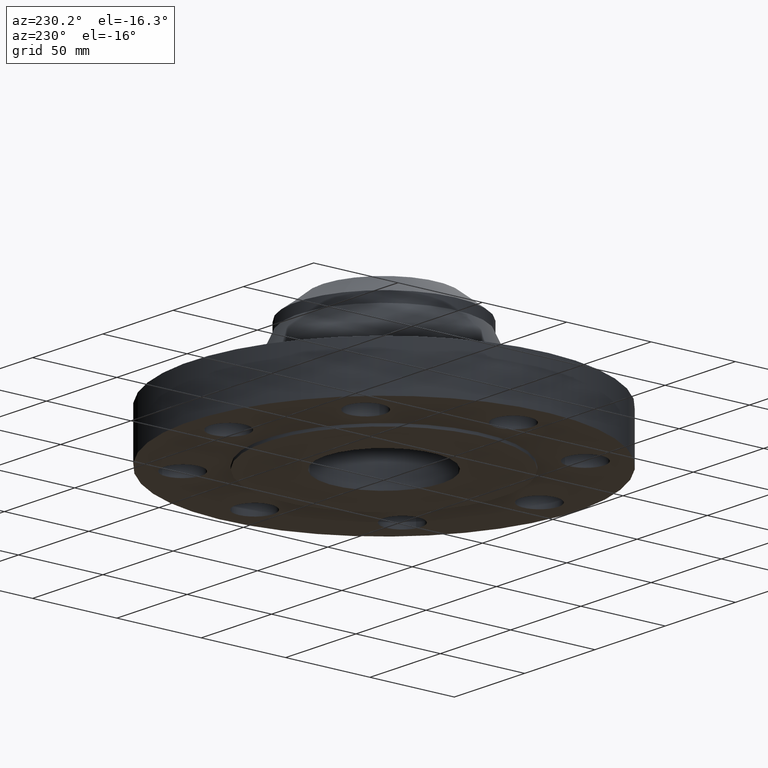
[diagram: clean part render]
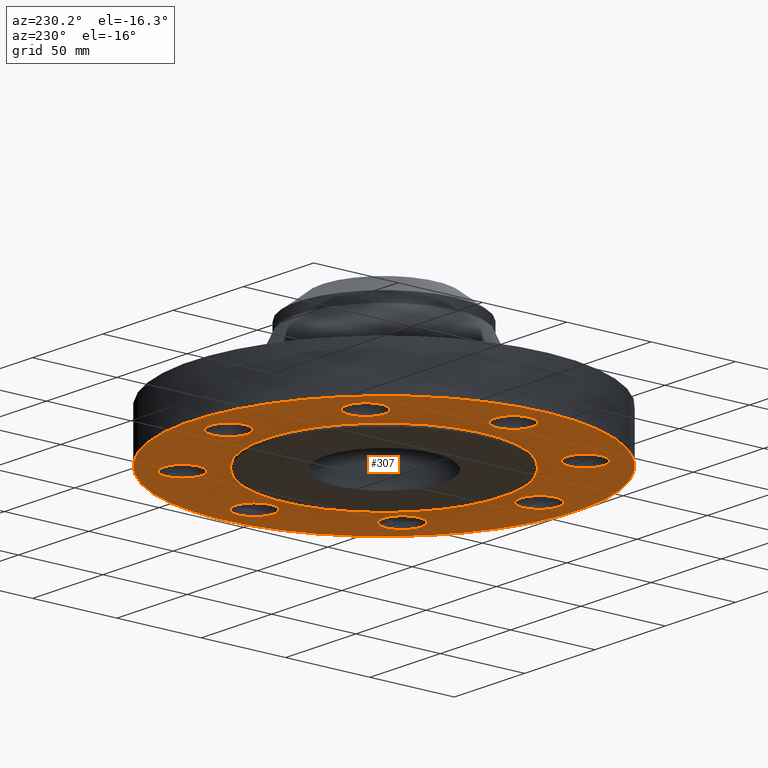
[diagram: same view with one face highlighted and labeled with its STEP entity id]
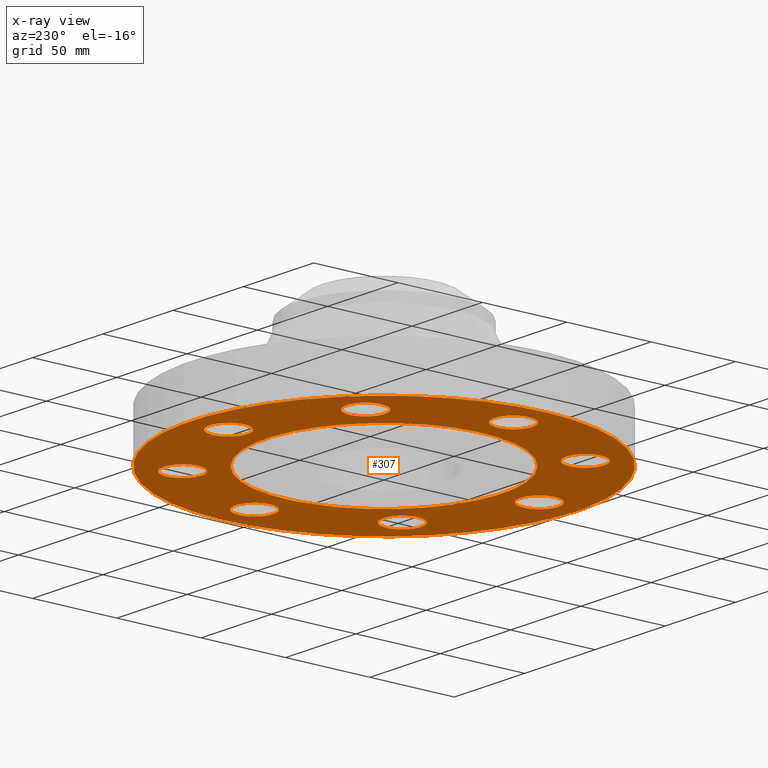
[diagram: x-ray of the same camera — body ghosted, the highlighted face saturated]
A machine part, auxiliary view. The second image highlights one B-rep face of the part: STEP entity #307.
The next image is the same camera in x-ray: the body ghosted, the highlighted face saturated — about 0% of this face is hidden behind the body in this view.
In plain terms, the highlighted planar face has unit normal (0, 0, -1).
Its self-contained STEP definition (entity closure, byte-faithful):
#51=AXIS2_PLACEMENT_3D('Circle Axis2P3D',#49,#50,$) ;
#139=AXIS2_PLACEMENT_3D('Plane Axis2P3D',#136,#137,#138) ;
#143=AXIS2_PLACEMENT_3D('Circle Axis2P3D',#141,#142,$) ;
#152=AXIS2_PLACEMENT_3D('Circle Axis2P3D',#150,#151,$) ;
#165=AXIS2_PLACEMENT_3D('Circle Axis2P3D',#163,#164,$) ;
#174=AXIS2_PLACEMENT_3D('Circle Axis2P3D',#172,#173,$) ;
#183=AXIS2_PLACEMENT_3D('Circle Axis2P3D',#181,#182,$) ;
#192=AXIS2_PLACEMENT_3D('Circle Axis2P3D',#190,#191,$) ;
#201=AXIS2_PLACEMENT_3D('Circle Axis2P3D',#199,#200,$) ;
#210=AXIS2_PLACEMENT_3D('Circle Axis2P3D',#208,#209,$) ;
#219=AXIS2_PLACEMENT_3D('Circle Axis2P3D',#217,#218,$) ;
#228=AXIS2_PLACEMENT_3D('Circle Axis2P3D',#226,#227,$) ;
#237=AXIS2_PLACEMENT_3D('Circle Axis2P3D',#235,#236,$) ;
#246=AXIS2_PLACEMENT_3D('Circle Axis2P3D',#244,#245,$) ;
#255=AXIS2_PLACEMENT_3D('Circle Axis2P3D',#253,#254,$) ;
#264=AXIS2_PLACEMENT_3D('Circle Axis2P3D',#262,#263,$) ;
#273=AXIS2_PLACEMENT_3D('Circle Axis2P3D',#271,#272,$) ;
#282=AXIS2_PLACEMENT_3D('Circle Axis2P3D',#280,#281,$) ;
#291=AXIS2_PLACEMENT_3D('Circle Axis2P3D',#289,#290,$) ;
#300=AXIS2_PLACEMENT_3D('Circle Axis2P3D',#298,#299,$) ;
#44=CARTESIAN_POINT('Vertex',(3.23886367278,0.210947236988,3.15885200761E-011)) ;
#49=CARTESIAN_POINT('Axis2P3D Location',(3.62500000001,0.,3.15885200761E-011)) ;
#53=CARTESIAN_POINT('Vertex',(4.01113632724,-0.210947236987,3.15885200761E-011)) ;
#89=CARTESIAN_POINT('Control Point',(4.01113632724,-0.210947236987,3.15885200761E-011)) ;
#90=CARTESIAN_POINT('Control Point',(3.97800081274,-0.271601389433,3.00090940723E-011)) ;
#91=CARTESIAN_POINT('Control Point',(3.93295588326,-0.325749398821,2.84296680685E-011)) ;
#92=CARTESIAN_POINT('Control Point',(3.8776953225,-0.370262840224,2.68502770324E-011)) ;
#93=CARTESIAN_POINT('Control Point',(3.75269808393,-0.435223603166,2.36914250248E-011)) ;
#94=CARTESIAN_POINT('Control Point',(3.61241808449,-0.448097302225,2.05325730171E-011)) ;
#95=CARTESIAN_POINT('Control Point',(3.54186721097,-0.440497941251,1.8953181981E-011)) ;
#96=CARTESIAN_POINT('Control Point',(3.40754661997,-0.398045742217,1.57943299734E-011)) ;
#97=CARTESIAN_POINT('Control Point',(3.29925060119,-0.307955883249,1.26354779658E-011)) ;
#98=CARTESIAN_POINT('Control Point',(3.25473715979,-0.252695322491,1.10560869296E-011)) ;
#99=CARTESIAN_POINT('Control Point',(3.18977639684,-0.127698083922,7.897234922E-012)) ;
#100=CARTESIAN_POINT('Control Point',(3.17690269778,0.0125819155223,4.73838291438E-012)) ;
#101=CARTESIAN_POINT('Control Point',(3.18450205876,0.0831327890369,3.15899187823E-012)) ;
#102=CARTESIAN_POINT('Control Point',(3.20572815828,0.150293084541,1.57956587442E-012)) ;
#103=CARTESIAN_POINT('Control Point',(3.23886367278,0.210947236987,1.39870617276E-016)) ;
#136=CARTESIAN_POINT('Axis2P3D Location',(0.,2.75000000001,0.)) ;
#141=CARTESIAN_POINT('Axis2P3D Location',(3.08532202411E-011,7.81149423361E-012,0.)) ;
#145=CARTESIAN_POINT('Vertex',(-2.15741492373,-3.94912152852,-2.57865470009E-011)) ;
#147=CARTESIAN_POINT('Vertex',(2.15741492373,3.94912152852,-2.57865470009E-011)) ;
#150=CARTESIAN_POINT('Axis2P3D Location',(1.1189649382E-015,2.46675820627E-011,0.)) ;
#163=CARTESIAN_POINT('Axis2P3D Location',(4.36664877485E-011,-3.58533150675E-011,0.)) ;
#167=CARTESIAN_POINT('Vertex',(1.31842023117,2.41335204521,-2.57865470009E-011)) ;
#169=CARTESIAN_POINT('Vertex',(-1.31842023117,-2.41335204521,-2.57865470009E-011)) ;
#172=CARTESIAN_POINT('Axis2P3D Location',(-4.36664877485E-011,1.18548740378E-011,0.)) ;
#181=CARTESIAN_POINT('Axis2P3D Location',(2.56326208176,-2.56326208183,0.)) ;
#185=CARTESIAN_POINT('Vertex',(2.43938468807,-2.1410602446,0.)) ;
#187=CARTESIAN_POINT('Vertex',(2.68713947554,-2.98546391903,0.)) ;
#190=CARTESIAN_POINT('Axis2P3D Location',(2.56326208185,-2.56326208181,0.)) ;
#199=CARTESIAN_POINT('Axis2P3D Location',(-3.49676543189E-017,-3.62500000002,0.)) ;
#203=CARTESIAN_POINT('Vertex',(0.210947237,-3.23886367277,0.)) ;
#205=CARTESIAN_POINT('Vertex',(-0.210947237,-4.01113632727,0.)) ;
#208=CARTESIAN_POINT('Axis2P3D Location',(3.49676543189E-017,-3.62500000002,0.)) ;
#217=CARTESIAN_POINT('Axis2P3D Location',(-2.56326208179,-2.56326208186,0.)) ;
#221=CARTESIAN_POINT('Vertex',(-2.14106024463,-2.43938468812,0.)) ;
#223=CARTESIAN_POINT('Vertex',(-2.98546391899,-2.68713947552,0.)) ;
#226=CARTESIAN_POINT('Axis2P3D Location',(-2.56326208182,-2.56326208178,0.)) ;
#235=CARTESIAN_POINT('Axis2P3D Location',(-3.62500000001,-1.19992205148E-011,0.)) ;
#239=CARTESIAN_POINT('Vertex',(-3.2388636728,-0.210947236975,0.)) ;
#241=CARTESIAN_POINT('Vertex',(-4.01113632722,0.210947236951,0.)) ;
#244=CARTESIAN_POINT('Axis2P3D Location',(-3.62500000001,-1.19992205148E-011,0.)) ;
#253=CARTESIAN_POINT('Axis2P3D Location',(-2.56326208176,2.56326208181,0.)) ;
#257=CARTESIAN_POINT('Vertex',(-2.43938468807,2.14106024458,0.)) ;
#259=CARTESIAN_POINT('Vertex',(-2.68713947554,2.98546391901,0.)) ;
#262=CARTESIAN_POINT('Axis2P3D Location',(-2.56326208185,2.56326208178,0.)) ;
#271=CARTESIAN_POINT('Axis2P3D Location',(3.49676543189E-017,3.625,0.)) ;
#275=CARTESIAN_POINT('Vertex',(-0.210947237,3.23886367275,0.)) ;
#277=CARTESIAN_POINT('Vertex',(0.210947237,4.01113632724,0.)) ;
#280=CARTESIAN_POINT('Axis2P3D Location',(-3.49676543189E-017,3.625,0.)) ;
#289=CARTESIAN_POINT('Axis2P3D Location',(2.56326208179,2.56326208184,0.)) ;
#293=CARTESIAN_POINT('Vertex',(2.14106024463,2.4393846881,0.)) ;
#295=CARTESIAN_POINT('Vertex',(2.98546391899,2.68713947549,0.)) ;
#298=CARTESIAN_POINT('Axis2P3D Location',(2.56326208182,2.56326208175,0.)) ;
#50=DIRECTION('Axis2P3D Direction',(0.,-0.,-0.0393700787402)) ;
#137=DIRECTION('Axis2P3D Direction',(0.,0.,-0.0393700787402)) ;
#138=DIRECTION('Axis2P3D XDirection',(0.0393700787402,0.,0.)) ;
#142=DIRECTION('Axis2P3D Direction',(0.,0.,-0.0393700787402)) ;
#151=DIRECTION('Axis2P3D Direction',(0.,0.,-0.0393700787402)) ;
#164=DIRECTION('Axis2P3D Direction',(0.,0.,-0.0393700787402)) ;
#173=DIRECTION('Axis2P3D Direction',(0.,0.,-0.0393700787402)) ;
#182=DIRECTION('Axis2P3D Direction',(0.,0.,-0.0393700787402)) ;
#191=DIRECTION('Axis2P3D Direction',(0.,0.,-0.0393700787402)) ;
#200=DIRECTION('Axis2P3D Direction',(0.,0.,-0.0393700787402)) ;
#209=DIRECTION('Axis2P3D Direction',(0.,0.,-0.0393700787402)) ;
#218=DIRECTION('Axis2P3D Direction',(0.,0.,-0.0393700787402)) ;
#227=DIRECTION('Axis2P3D Direction',(0.,0.,-0.0393700787402)) ;
#236=DIRECTION('Axis2P3D Direction',(0.,0.,-0.0393700787402)) ;
#245=DIRECTION('Axis2P3D Direction',(0.,0.,-0.0393700787402)) ;
#254=DIRECTION('Axis2P3D Direction',(0.,0.,-0.0393700787402)) ;
#263=DIRECTION('Axis2P3D Direction',(0.,0.,-0.0393700787402)) ;
#272=DIRECTION('Axis2P3D Direction',(0.,0.,-0.0393700787402)) ;
#281=DIRECTION('Axis2P3D Direction',(0.,0.,-0.0393700787402)) ;
#290=DIRECTION('Axis2P3D Direction',(0.,0.,-0.0393700787402)) ;
#299=DIRECTION('Axis2P3D Direction',(0.,0.,-0.0393700787402)) ;
#156=ORIENTED_EDGE('',*,*,#149,.T.) ;
#157=ORIENTED_EDGE('',*,*,#154,.T.) ;
#160=ORIENTED_EDGE('',*,*,#104,.F.) ;
#161=ORIENTED_EDGE('',*,*,#55,.F.) ;
#178=ORIENTED_EDGE('',*,*,#171,.F.) ;
#179=ORIENTED_EDGE('',*,*,#176,.F.) ;
#196=ORIENTED_EDGE('',*,*,#189,.F.) ;
#197=ORIENTED_EDGE('',*,*,#194,.F.) ;
#214=ORIENTED_EDGE('',*,*,#207,.F.) ;
#215=ORIENTED_EDGE('',*,*,#212,.F.) ;
#232=ORIENTED_EDGE('',*,*,#225,.F.) ;
#233=ORIENTED_EDGE('',*,*,#230,.F.) ;
#250=ORIENTED_EDGE('',*,*,#243,.F.) ;
#251=ORIENTED_EDGE('',*,*,#248,.F.) ;
#268=ORIENTED_EDGE('',*,*,#261,.F.) ;
#269=ORIENTED_EDGE('',*,*,#266,.F.) ;
#286=ORIENTED_EDGE('',*,*,#279,.F.) ;
#287=ORIENTED_EDGE('',*,*,#284,.F.) ;
#304=ORIENTED_EDGE('',*,*,#297,.F.) ;
#305=ORIENTED_EDGE('',*,*,#302,.F.) ;
#162=FACE_BOUND('',#159,.T.) ;
#180=FACE_BOUND('',#177,.T.) ;
#198=FACE_BOUND('',#195,.T.) ;
#216=FACE_BOUND('',#213,.T.) ;
#234=FACE_BOUND('',#231,.T.) ;
#252=FACE_BOUND('',#249,.T.) ;
#270=FACE_BOUND('',#267,.T.) ;
#288=FACE_BOUND('',#285,.T.) ;
#306=FACE_BOUND('',#303,.T.) ;
#307=ADVANCED_FACE('PartBody',(#158,#162,#180,#198,#216,#234,#252,#270,#288,#306),#140,.T.) ;
#88=B_SPLINE_CURVE_WITH_KNOTS('',5,(#89,#90,#91,#92,#93,#94,#95,#96,#97,#98,#99,#100,#101,#102,#103),.UNSPECIFIED.,.F.,.U.,(6,3,3,3,6),(-17.5552197483,-8.77760987417,0.,8.77760987417,17.5552197483),.UNSPECIFIED.) ;
#52=CIRCLE('generated circle',#51,0.440000000002) ;
#144=CIRCLE('generated circle',#143,4.50000000003) ;
#153=CIRCLE('generated circle',#152,4.50000000003) ;
#166=CIRCLE('generated circle',#165,2.74999999999) ;
#175=CIRCLE('generated circle',#174,2.74999999999) ;
#184=CIRCLE('generated circle',#183,0.44000000003) ;
#193=CIRCLE('generated circle',#192,0.44000000003) ;
#202=CIRCLE('generated circle',#201,0.44000000002) ;
#211=CIRCLE('generated circle',#210,0.44000000002) ;
#220=CIRCLE('generated circle',#219,0.439999999984) ;
#229=CIRCLE('generated circle',#228,0.439999999984) ;
#238=CIRCLE('generated circle',#237,0.43999999997) ;
#247=CIRCLE('generated circle',#246,0.43999999997) ;
#256=CIRCLE('generated circle',#255,0.44000000003) ;
#265=CIRCLE('generated circle',#264,0.44000000003) ;
#274=CIRCLE('generated circle',#273,0.44000000002) ;
#283=CIRCLE('generated circle',#282,0.44000000002) ;
#292=CIRCLE('generated circle',#291,0.439999999984) ;
#301=CIRCLE('generated circle',#300,0.439999999984) ;
#55=EDGE_CURVE('',#45,#54,#52,.T.) ;
#104=EDGE_CURVE('',#54,#45,#88,.T.) ;
#149=EDGE_CURVE('',#146,#148,#144,.T.) ;
#154=EDGE_CURVE('',#148,#146,#153,.T.) ;
#171=EDGE_CURVE('',#168,#170,#166,.T.) ;
#176=EDGE_CURVE('',#170,#168,#175,.T.) ;
#189=EDGE_CURVE('',#186,#188,#184,.T.) ;
#194=EDGE_CURVE('',#188,#186,#193,.T.) ;
#207=EDGE_CURVE('',#204,#206,#202,.T.) ;
#212=EDGE_CURVE('',#206,#204,#211,.T.) ;
#225=EDGE_CURVE('',#222,#224,#220,.T.) ;
#230=EDGE_CURVE('',#224,#222,#229,.T.) ;
#243=EDGE_CURVE('',#240,#242,#238,.T.) ;
#248=EDGE_CURVE('',#242,#240,#247,.T.) ;
#261=EDGE_CURVE('',#258,#260,#256,.T.) ;
#266=EDGE_CURVE('',#260,#258,#265,.T.) ;
#279=EDGE_CURVE('',#276,#278,#274,.T.) ;
#284=EDGE_CURVE('',#278,#276,#283,.T.) ;
#297=EDGE_CURVE('',#294,#296,#292,.T.) ;
#302=EDGE_CURVE('',#296,#294,#301,.T.) ;
#155=EDGE_LOOP('',(#156,#157)) ;
#159=EDGE_LOOP('',(#160,#161)) ;
#177=EDGE_LOOP('',(#178,#179)) ;
#195=EDGE_LOOP('',(#196,#197)) ;
#213=EDGE_LOOP('',(#214,#215)) ;
#231=EDGE_LOOP('',(#232,#233)) ;
#249=EDGE_LOOP('',(#250,#251)) ;
#267=EDGE_LOOP('',(#268,#269)) ;
#285=EDGE_LOOP('',(#286,#287)) ;
#303=EDGE_LOOP('',(#304,#305)) ;
#158=FACE_OUTER_BOUND('',#155,.T.) ;
#140=PLANE('',#139) ;
#45=VERTEX_POINT('',#44) ;
#54=VERTEX_POINT('',#53) ;
#146=VERTEX_POINT('',#145) ;
#148=VERTEX_POINT('',#147) ;
#168=VERTEX_POINT('',#167) ;
#170=VERTEX_POINT('',#169) ;
#186=VERTEX_POINT('',#185) ;
#188=VERTEX_POINT('',#187) ;
#204=VERTEX_POINT('',#203) ;
#206=VERTEX_POINT('',#205) ;
#222=VERTEX_POINT('',#221) ;
#224=VERTEX_POINT('',#223) ;
#240=VERTEX_POINT('',#239) ;
#242=VERTEX_POINT('',#241) ;
#258=VERTEX_POINT('',#257) ;
#260=VERTEX_POINT('',#259) ;
#276=VERTEX_POINT('',#275) ;
#278=VERTEX_POINT('',#277) ;
#294=VERTEX_POINT('',#293) ;
#296=VERTEX_POINT('',#295) ;